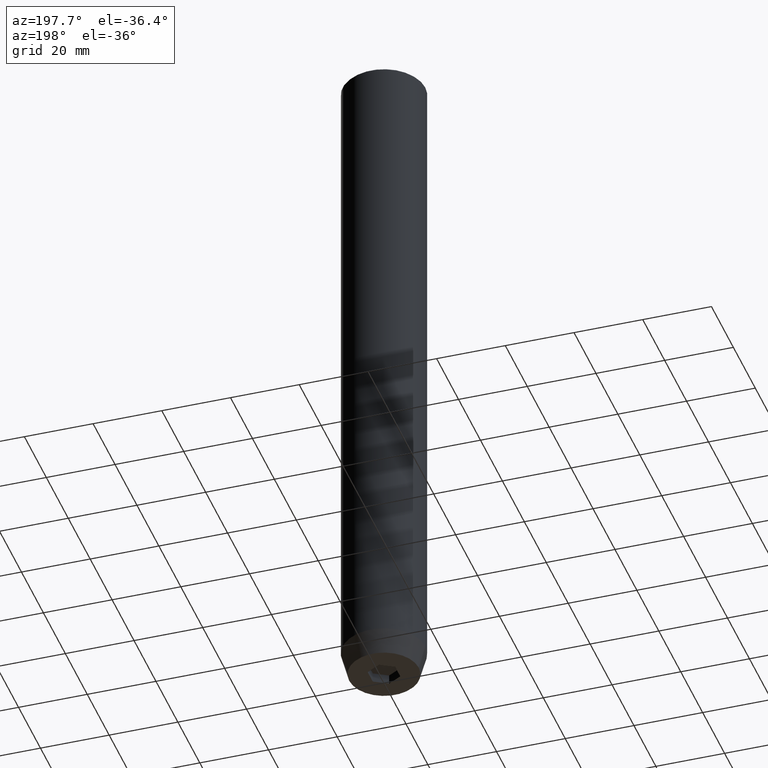
[diagram: clean part render]
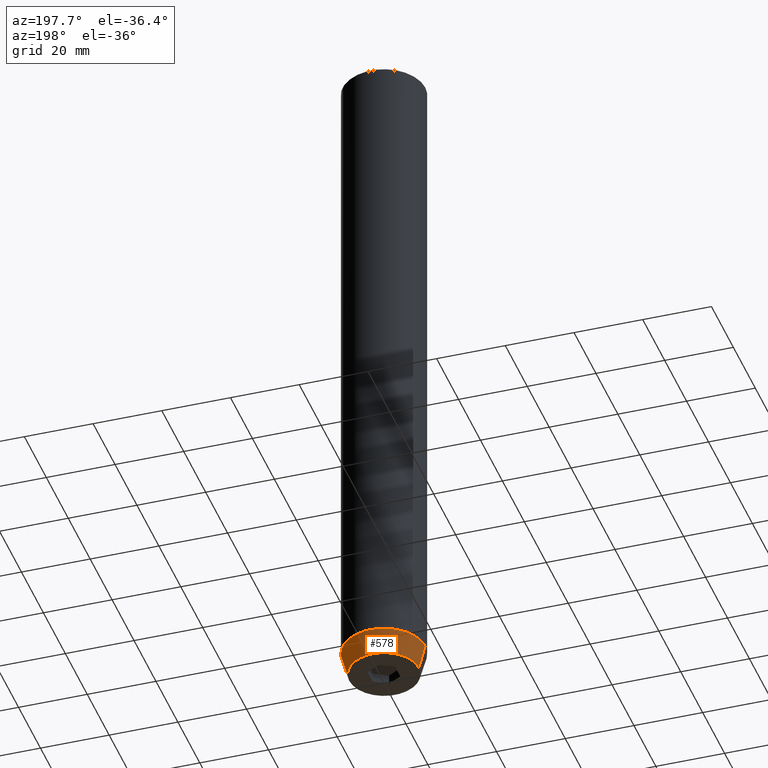
[diagram: same view with one face highlighted and labeled with its STEP entity id]
A machine part, auxiliary view. The second image highlights one B-rep face of the part: STEP entity #578.
In plain terms, the highlighted conical surface has half-angle 15 deg.
Its self-contained STEP definition (entity closure, byte-faithful):
#4 = VECTOR ( 'NONE', #447, 1000.000000000000000 ) ;
#12 = CARTESIAN_POINT ( 'NONE',  ( 0.000000000000000000, 0.000000000000000000, -200.0000000000000000 ) ) ;
#52 = VERTEX_POINT ( 'NONE', #127 ) ;
#53 = AXIS2_PLACEMENT_3D ( 'NONE', #12, #62, #255 ) ;
#55 = ORIENTED_EDGE ( 'NONE', *, *, #334, .F. ) ;
#58 = EDGE_CURVE ( 'NONE', #52, #149, #160, .T. ) ;
#62 = DIRECTION ( 'NONE',  ( -0.000000000000000000, -0.000000000000000000, 1.000000000000000000 ) ) ;
#105 = ORIENTED_EDGE ( 'NONE', *, *, #507, .T. ) ;
#125 = ORIENTED_EDGE ( 'NONE', *, *, #58, .F. ) ;
#127 = CARTESIAN_POINT ( 'NONE',  ( 12.00000000000000000, 0.000000000000000000, -193.0000000000000000 ) ) ;
#147 = LINE ( 'NONE', #317, #4 ) ;
#149 = VERTEX_POINT ( 'NONE', #425 ) ;
#156 = VERTEX_POINT ( 'NONE', #265 ) ;
#160 = CIRCLE ( 'NONE', #241, 12.00000000000000000 ) ;
#163 = AXIS2_PLACEMENT_3D ( 'NONE', #250, #367, #205 ) ;
#179 = DIRECTION ( 'NONE',  ( 0.2588190451025213501, 0.000000000000000000, 0.9659258262890680902 ) ) ;
#204 = VECTOR ( 'NONE', #179, 1000.000000000000000 ) ;
#205 = DIRECTION ( 'NONE',  ( 1.000000000000000000, 0.000000000000000000, 0.000000000000000000 ) ) ;
#235 = CARTESIAN_POINT ( 'NONE',  ( 10.12435565298213547, 0.000000000000000000, -200.0000000000000000 ) ) ;
#236 = LINE ( 'NONE', #406, #204 ) ;
#241 = AXIS2_PLACEMENT_3D ( 'NONE', #347, #313, #485 ) ;
#243 = CIRCLE ( 'NONE', #53, 10.12435565298213547 ) ;
#250 = CARTESIAN_POINT ( 'NONE',  ( 0.000000000000000000, 0.000000000000000000, -193.0000000000000000 ) ) ;
#255 = DIRECTION ( 'NONE',  ( 1.000000000000000000, 0.000000000000000000, 0.000000000000000000 ) ) ;
#265 = CARTESIAN_POINT ( 'NONE',  ( -10.12435565298213547, 1.354726066681111050E-15, -200.0000000000000000 ) ) ;
#313 = DIRECTION ( 'NONE',  ( -0.000000000000000000, -0.000000000000000000, 1.000000000000000000 ) ) ;
#317 = CARTESIAN_POINT ( 'NONE',  ( -12.00000000000000000, 1.469576158976823947E-15, -193.0000000000000000 ) ) ;
#334 = EDGE_CURVE ( 'NONE', #416, #52, #236, .T. ) ;
#347 = CARTESIAN_POINT ( 'NONE',  ( 0.000000000000000000, 0.000000000000000000, -193.0000000000000000 ) ) ;
#367 = DIRECTION ( 'NONE',  ( -0.000000000000000000, -0.000000000000000000, 1.000000000000000000 ) ) ;
#406 = CARTESIAN_POINT ( 'NONE',  ( 12.00000000000000000, 0.000000000000000000, -193.0000000000000000 ) ) ;
#416 = VERTEX_POINT ( 'NONE', #235 ) ;
#425 = CARTESIAN_POINT ( 'NONE',  ( -12.00000000000000000, 1.469576158976823947E-15, -193.0000000000000000 ) ) ;
#447 = DIRECTION ( 'NONE',  ( -0.2588190451025213501, 3.169619151431772337E-17, 0.9659258262890680902 ) ) ;
#458 = EDGE_CURVE ( 'NONE', #156, #149, #147, .T. ) ;
#471 = EDGE_LOOP ( 'NONE', ( #105, #539, #125, #55 ) ) ;
#485 = DIRECTION ( 'NONE',  ( 1.000000000000000000, 0.000000000000000000, 0.000000000000000000 ) ) ;
#507 = EDGE_CURVE ( 'NONE', #416, #156, #243, .T. ) ;
#539 = ORIENTED_EDGE ( 'NONE', *, *, #458, .T. ) ;
#549 = CONICAL_SURFACE ( 'NONE', #163, 12.00000000000000000, 0.2617993877991500740 ) ;
#565 = FACE_OUTER_BOUND ( 'NONE', #471, .T. ) ;
#578 = ADVANCED_FACE ( 'NONE', ( #565 ), #549, .T. ) ;